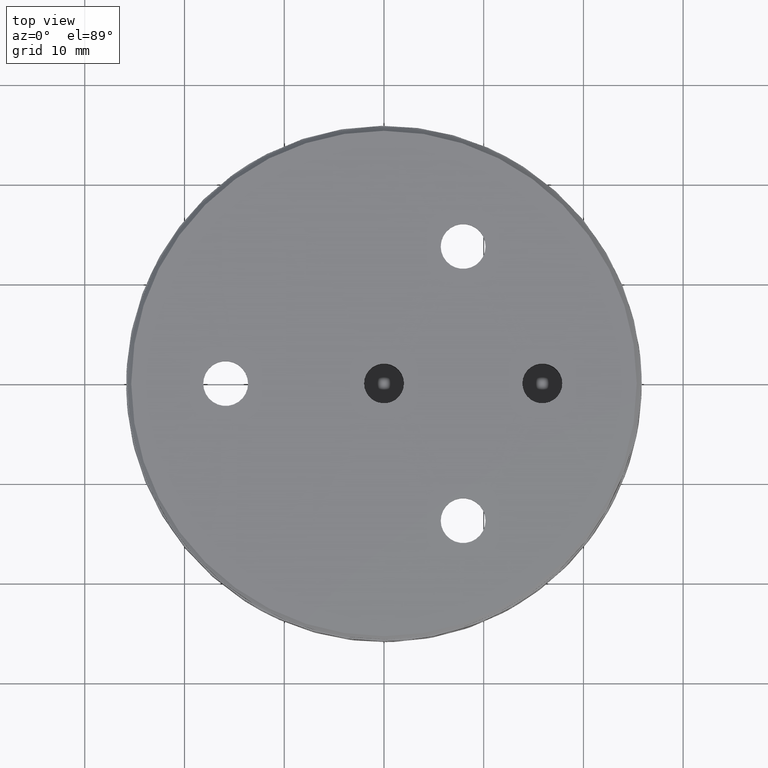
[diagram: clean part render]
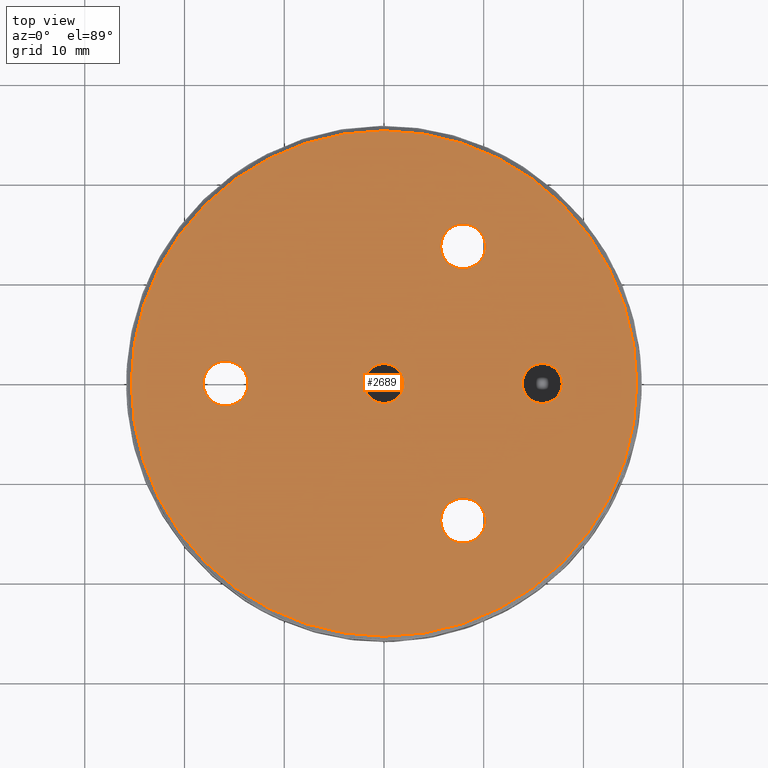
[diagram: same view with one face highlighted and labeled with its STEP entity id]
A machine part, top view. The second image highlights one B-rep face of the part: STEP entity #2689.
In plain terms, the highlighted planar face has unit normal (0, 0, 1).
Its self-contained STEP definition (entity closure, byte-faithful):
#41 = CIRCLE ( 'NONE', #346, 25.34450000000000713 ) ;
#49 = CARTESIAN_POINT ( 'NONE',  ( 5.687499999999872990, 13.74815328507803969, 3.000000000000000000 ) ) ;
#91 = FACE_BOUND ( 'NONE', #932, .T. ) ;
#163 = AXIS2_PLACEMENT_3D ( 'NONE', #3755, #1114, #2298 ) ;
#205 = ORIENTED_EDGE ( 'NONE', *, *, #3406, .T. ) ;
#222 = DIRECTION ( 'NONE',  ( 1.000000000000000000, 0.000000000000000000, -0.000000000000000000 ) ) ;
#255 = VERTEX_POINT ( 'NONE', #3818 ) ;
#262 = DIRECTION ( 'NONE',  ( -1.000000000000000000, 0.000000000000000000, 0.000000000000000000 ) ) ;
#275 = DIRECTION ( 'NONE',  ( 0.000000000000000000, 0.000000000000000000, 1.000000000000000000 ) ) ;
#335 = CARTESIAN_POINT ( 'NONE',  ( 5.687500000000065725, -13.74815328507792778, 3.000000000000000000 ) ) ;
#346 = AXIS2_PLACEMENT_3D ( 'NONE', #822, #2000, #2881 ) ;
#363 = ORIENTED_EDGE ( 'NONE', *, *, #2304, .T. ) ;
#400 = AXIS2_PLACEMENT_3D ( 'NONE', #1241, #3606, #401 ) ;
#401 = DIRECTION ( 'NONE',  ( -1.000000000000000000, 0.000000000000000000, 0.000000000000000000 ) ) ;
#456 = DIRECTION ( 'NONE',  ( -0.000000000000000000, -0.000000000000000000, -1.000000000000000000 ) ) ;
#479 = ORIENTED_EDGE ( 'NONE', *, *, #3303, .T. ) ;
#593 = AXIS2_PLACEMENT_3D ( 'NONE', #1637, #456, #2806 ) ;
#811 = ORIENTED_EDGE ( 'NONE', *, *, #3067, .T. ) ;
#822 = CARTESIAN_POINT ( 'NONE',  ( 0.000000000000000000, 0.000000000000000000, 3.000000000000002665 ) ) ;
#832 = ORIENTED_EDGE ( 'NONE', *, *, #1457, .T. ) ;
#842 = CARTESIAN_POINT ( 'NONE',  ( 7.937499999999873879, 13.74815328507803969, 3.000000000000000000 ) ) ;
#902 = VERTEX_POINT ( 'NONE', #49 ) ;
#932 = EDGE_LOOP ( 'NONE', ( #811 ) ) ;
#980 = FACE_BOUND ( 'NONE', #1698, .T. ) ;
#1114 = DIRECTION ( 'NONE',  ( -0.000000000000000000, -0.000000000000000000, -1.000000000000000000 ) ) ;
#1209 = VERTEX_POINT ( 'NONE', #2409 ) ;
#1216 = CIRCLE ( 'NONE', #2031, 1.999999999999999112 ) ;
#1241 = CARTESIAN_POINT ( 'NONE',  ( -15.87500000000000355, -3.049318610115481221E-16, 3.000000000000000000 ) ) ;
#1387 = CARTESIAN_POINT ( 'NONE',  ( -18.12500000000000355, -3.049318610115481221E-16, 3.000000000000000000 ) ) ;
#1430 = VERTEX_POINT ( 'NONE', #1387 ) ;
#1436 = FACE_OUTER_BOUND ( 'NONE', #2255, .T. ) ;
#1450 = DIRECTION ( 'NONE',  ( -0.000000000000000000, -0.000000000000000000, -1.000000000000000000 ) ) ;
#1457 = EDGE_CURVE ( 'NONE', #255, #255, #2879, .T. ) ;
#1548 = CARTESIAN_POINT ( 'NONE',  ( -25.34450000000000713, 0.000000000000000000, 3.000000000000002665 ) ) ;
#1575 = AXIS2_PLACEMENT_3D ( 'NONE', #842, #1450, #262 ) ;
#1637 = CARTESIAN_POINT ( 'NONE',  ( 15.87500000000000355, 0.000000000000000000, 3.000000000000000000 ) ) ;
#1688 = CARTESIAN_POINT ( 'NONE',  ( 0.000000000000000000, 0.000000000000000000, 3.000000000000000000 ) ) ;
#1698 = EDGE_LOOP ( 'NONE', ( #363 ) ) ;
#1709 = DIRECTION ( 'NONE',  ( -0.000000000000000000, -0.000000000000000000, -1.000000000000000000 ) ) ;
#1719 = CIRCLE ( 'NONE', #163, 2.250000000000000444 ) ;
#2000 = DIRECTION ( 'NONE',  ( -0.000000000000000000, -0.000000000000000000, 1.000000000000000000 ) ) ;
#2031 = AXIS2_PLACEMENT_3D ( 'NONE', #1688, #1709, #3147 ) ;
#2086 = VERTEX_POINT ( 'NONE', #335 ) ;
#2255 = EDGE_LOOP ( 'NONE', ( #3419 ) ) ;
#2279 = AXIS2_PLACEMENT_3D ( 'NONE', #3436, #275, #222 ) ;
#2298 = DIRECTION ( 'NONE',  ( -1.000000000000000000, 0.000000000000000000, 0.000000000000000000 ) ) ;
#2304 = EDGE_CURVE ( 'NONE', #1430, #1430, #3747, .T. ) ;
#2409 = CARTESIAN_POINT ( 'NONE',  ( 1.999999999999999112, 0.000000000000000000, 3.000000000000000000 ) ) ;
#2669 = VERTEX_POINT ( 'NONE', #1548 ) ;
#2689 = ADVANCED_FACE ( 'NONE', ( #2727, #91, #980, #2747, #3637, #1436 ), #3776, .T. ) ;
#2727 = FACE_BOUND ( 'NONE', #3739, .T. ) ;
#2739 = CIRCLE ( 'NONE', #1575, 2.250000000000000444 ) ;
#2747 = FACE_BOUND ( 'NONE', #3764, .T. ) ;
#2806 = DIRECTION ( 'NONE',  ( 1.000000000000000000, 0.000000000000000000, 0.000000000000000000 ) ) ;
#2879 = CIRCLE ( 'NONE', #593, 1.999999999999998224 ) ;
#2881 = DIRECTION ( 'NONE',  ( -1.000000000000000000, 0.000000000000000000, 0.000000000000000000 ) ) ;
#3067 = EDGE_CURVE ( 'NONE', #902, #902, #2739, .T. ) ;
#3084 = EDGE_LOOP ( 'NONE', ( #479 ) ) ;
#3147 = DIRECTION ( 'NONE',  ( 1.000000000000000000, 0.000000000000000000, 0.000000000000000000 ) ) ;
#3303 = EDGE_CURVE ( 'NONE', #1209, #1209, #1216, .T. ) ;
#3406 = EDGE_CURVE ( 'NONE', #2086, #2086, #1719, .T. ) ;
#3419 = ORIENTED_EDGE ( 'NONE', *, *, #3529, .T. ) ;
#3436 = CARTESIAN_POINT ( 'NONE',  ( 0.000000000000000000, 0.000000000000000000, 3.000000000000000000 ) ) ;
#3529 = EDGE_CURVE ( 'NONE', #2669, #2669, #41, .T. ) ;
#3606 = DIRECTION ( 'NONE',  ( -0.000000000000000000, -0.000000000000000000, -1.000000000000000000 ) ) ;
#3637 = FACE_BOUND ( 'NONE', #3084, .T. ) ;
#3739 = EDGE_LOOP ( 'NONE', ( #205 ) ) ;
#3747 = CIRCLE ( 'NONE', #400, 2.249999999999998668 ) ;
#3755 = CARTESIAN_POINT ( 'NONE',  ( 7.937500000000065725, -13.74815328507792778, 3.000000000000000000 ) ) ;
#3764 = EDGE_LOOP ( 'NONE', ( #832 ) ) ;
#3776 = PLANE ( 'NONE',  #2279 ) ;
#3818 = CARTESIAN_POINT ( 'NONE',  ( 17.87500000000000355, 0.000000000000000000, 3.000000000000000000 ) ) ;